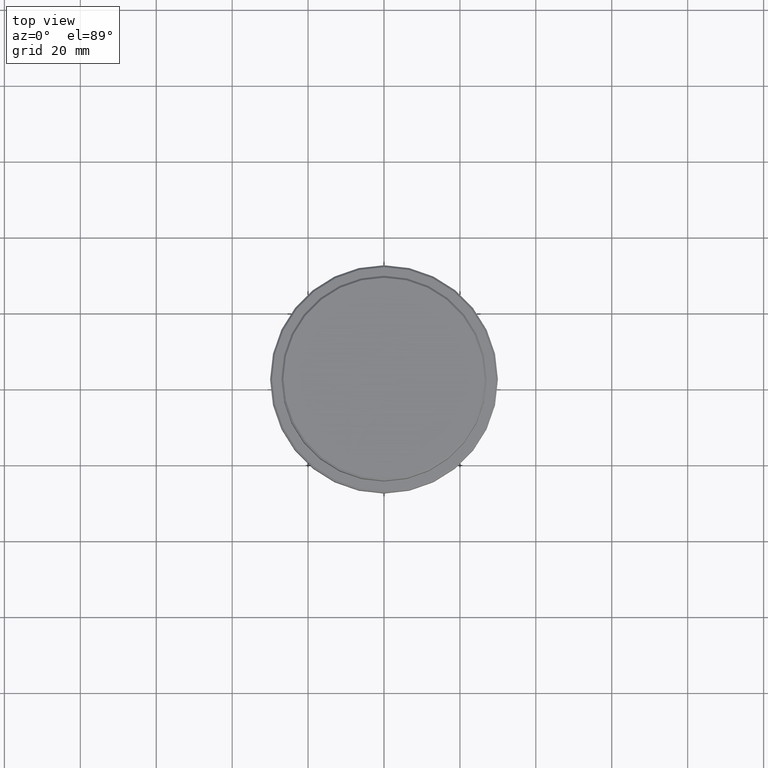
[diagram: clean part render]
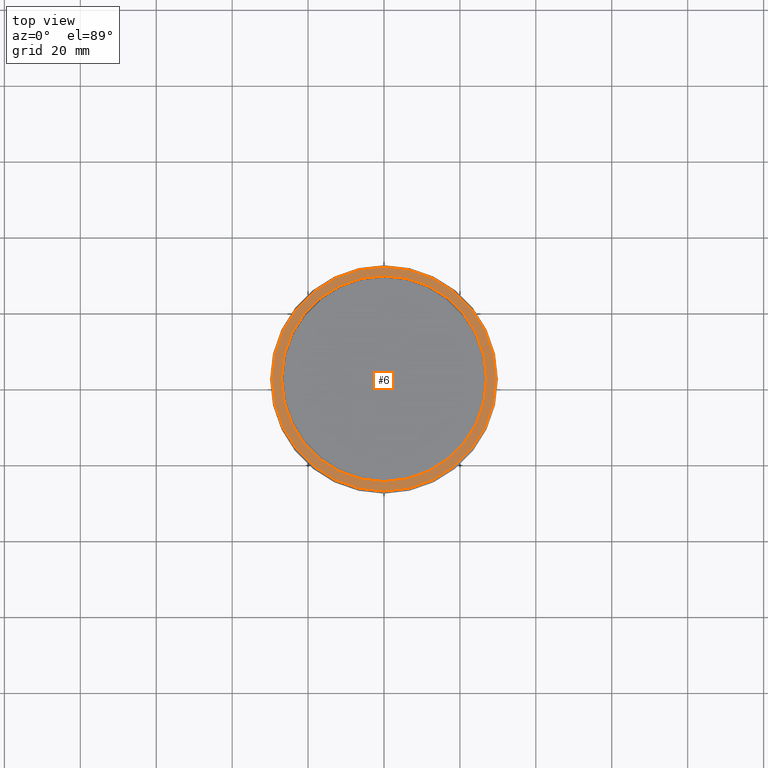
[diagram: same view with one face highlighted and labeled with its STEP entity id]
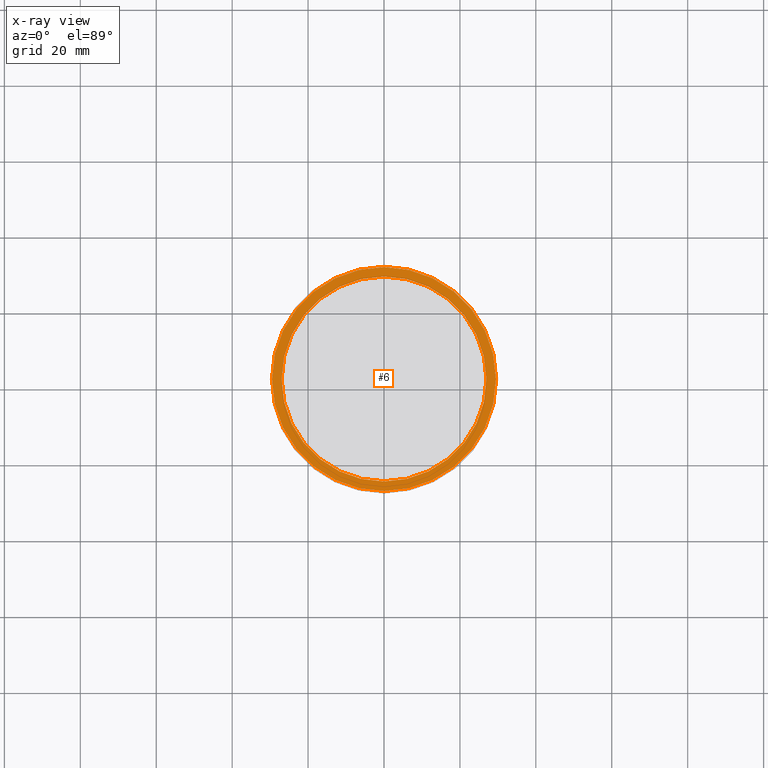
[diagram: x-ray of the same camera — body ghosted, the highlighted face saturated]
A machine part, top view. The second image highlights one B-rep face of the part: STEP entity #6.
The next image is the same camera in x-ray: the body ghosted, the highlighted face saturated — about 0% of this face is hidden behind the body in this view.
In plain terms, the highlighted planar face has unit normal (0, -0, 1).
Its self-contained STEP definition (entity closure, byte-faithful):
#4 = AXIS2_PLACEMENT_3D ( 'NONE', #1017, #171, #1238 ) ;
#6 = ADVANCED_FACE ( 'NONE', ( #181, #735 ), #49, .T. ) ;
#20 = DIRECTION ( 'NONE',  ( 0.000000000000000000, 0.000000000000000000, -1.000000000000000000 ) ) ;
#32 = CIRCLE ( 'NONE', #245, 26.99999999999999289 ) ;
#49 = PLANE ( 'NONE',  #4 ) ;
#94 = DIRECTION ( 'NONE',  ( 1.000000000000000000, 0.000000000000000000, 0.000000000000000000 ) ) ;
#108 = CIRCLE ( 'NONE', #1124, 26.99999999999999289 ) ;
#115 = EDGE_LOOP ( 'NONE', ( #1285, #1156 ) ) ;
#171 = DIRECTION ( 'NONE',  ( 0.000000000000000000, -0.000000000000000000, 1.000000000000000000 ) ) ;
#181 = FACE_OUTER_BOUND ( 'NONE', #115, .T. ) ;
#185 = EDGE_CURVE ( 'NONE', #848, #403, #218, .T. ) ;
#200 = CARTESIAN_POINT ( 'NONE',  ( 0.000000000000000000, 0.000000000000000000, -12.00000000000000178 ) ) ;
#218 = CIRCLE ( 'NONE', #241, 29.50000000000000000 ) ;
#241 = AXIS2_PLACEMENT_3D ( 'NONE', #1408, #1388, #1095 ) ;
#245 = AXIS2_PLACEMENT_3D ( 'NONE', #200, #420, #94 ) ;
#361 = ORIENTED_EDGE ( 'NONE', *, *, #776, .T. ) ;
#384 = EDGE_CURVE ( 'NONE', #548, #1099, #32, .T. ) ;
#403 = VERTEX_POINT ( 'NONE', #704 ) ;
#411 = EDGE_LOOP ( 'NONE', ( #361, #529 ) ) ;
#420 = DIRECTION ( 'NONE',  ( 0.000000000000000000, 0.000000000000000000, -1.000000000000000000 ) ) ;
#476 = EDGE_CURVE ( 'NONE', #403, #848, #1023, .T. ) ;
#529 = ORIENTED_EDGE ( 'NONE', *, *, #384, .T. ) ;
#548 = VERTEX_POINT ( 'NONE', #949 ) ;
#572 = CARTESIAN_POINT ( 'NONE',  ( 0.000000000000000000, 0.000000000000000000, -12.00000000000000178 ) ) ;
#704 = CARTESIAN_POINT ( 'NONE',  ( 29.50000000000000000, 3.643324227463375391E-15, -12.00000000000000178 ) ) ;
#735 = FACE_BOUND ( 'NONE', #411, .T. ) ;
#745 = AXIS2_PLACEMENT_3D ( 'NONE', #919, #1360, #1218 ) ;
#776 = EDGE_CURVE ( 'NONE', #1099, #548, #108, .T. ) ;
#848 = VERTEX_POINT ( 'NONE', #1336 ) ;
#919 = CARTESIAN_POINT ( 'NONE',  ( 0.000000000000000000, 0.000000000000000000, -12.00000000000000178 ) ) ;
#949 = CARTESIAN_POINT ( 'NONE',  ( -26.99999999999999289, 3.306546357697852944E-15, -12.00000000000000178 ) ) ;
#1017 = CARTESIAN_POINT ( 'NONE',  ( 0.000000000000000000, 26.49999999999999645, -12.00000000000000178 ) ) ;
#1023 = CIRCLE ( 'NONE', #745, 29.50000000000000000 ) ;
#1095 = DIRECTION ( 'NONE',  ( 1.000000000000000000, 0.000000000000000000, 0.000000000000000000 ) ) ;
#1099 = VERTEX_POINT ( 'NONE', #1340 ) ;
#1111 = DIRECTION ( 'NONE',  ( 1.000000000000000000, 0.000000000000000000, 0.000000000000000000 ) ) ;
#1124 = AXIS2_PLACEMENT_3D ( 'NONE', #572, #20, #1111 ) ;
#1156 = ORIENTED_EDGE ( 'NONE', *, *, #476, .T. ) ;
#1218 = DIRECTION ( 'NONE',  ( 1.000000000000000000, 0.000000000000000000, 0.000000000000000000 ) ) ;
#1238 = DIRECTION ( 'NONE',  ( 1.000000000000000000, 0.000000000000000000, 0.000000000000000000 ) ) ;
#1285 = ORIENTED_EDGE ( 'NONE', *, *, #185, .T. ) ;
#1336 = CARTESIAN_POINT ( 'NONE',  ( -29.50000000000000000, 0.000000000000000000, -12.00000000000000178 ) ) ;
#1340 = CARTESIAN_POINT ( 'NONE',  ( 26.99999999999999289, 0.000000000000000000, -12.00000000000000178 ) ) ;
#1360 = DIRECTION ( 'NONE',  ( -0.000000000000000000, -0.000000000000000000, 1.000000000000000000 ) ) ;
#1388 = DIRECTION ( 'NONE',  ( -0.000000000000000000, -0.000000000000000000, 1.000000000000000000 ) ) ;
#1408 = CARTESIAN_POINT ( 'NONE',  ( 0.000000000000000000, 0.000000000000000000, -12.00000000000000178 ) ) ;